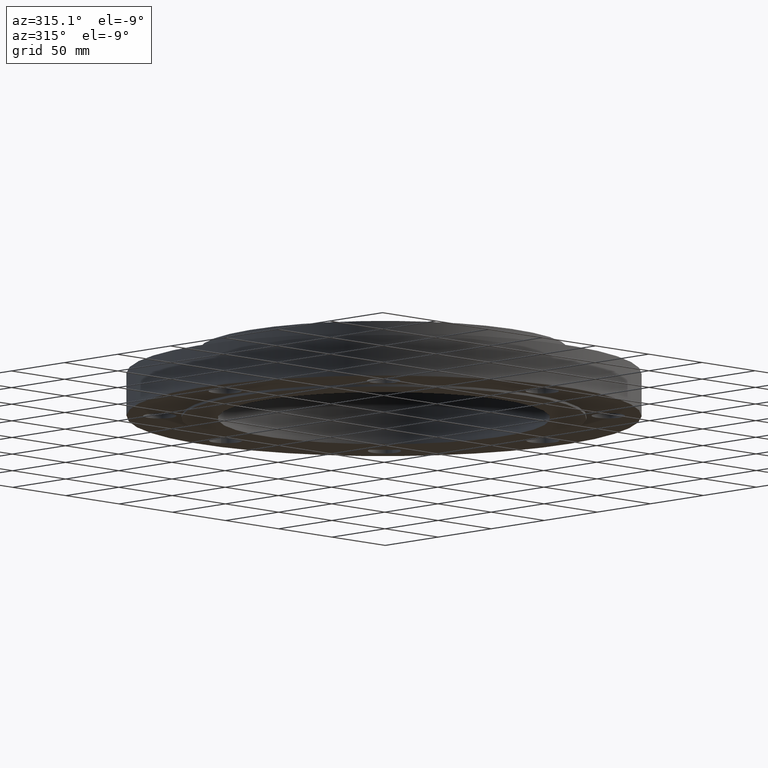
[diagram: clean part render]
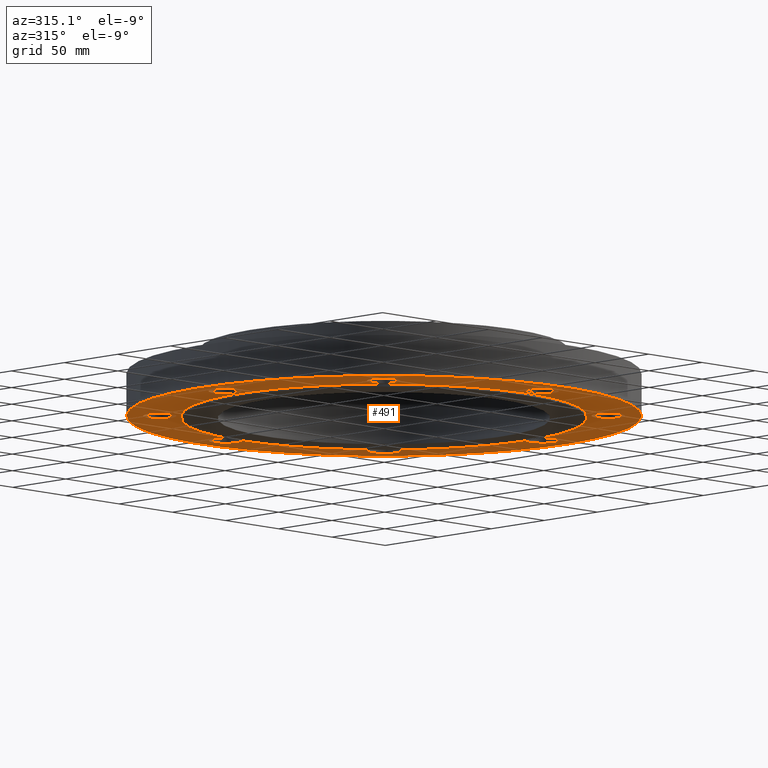
[diagram: same view with one face highlighted and labeled with its STEP entity id]
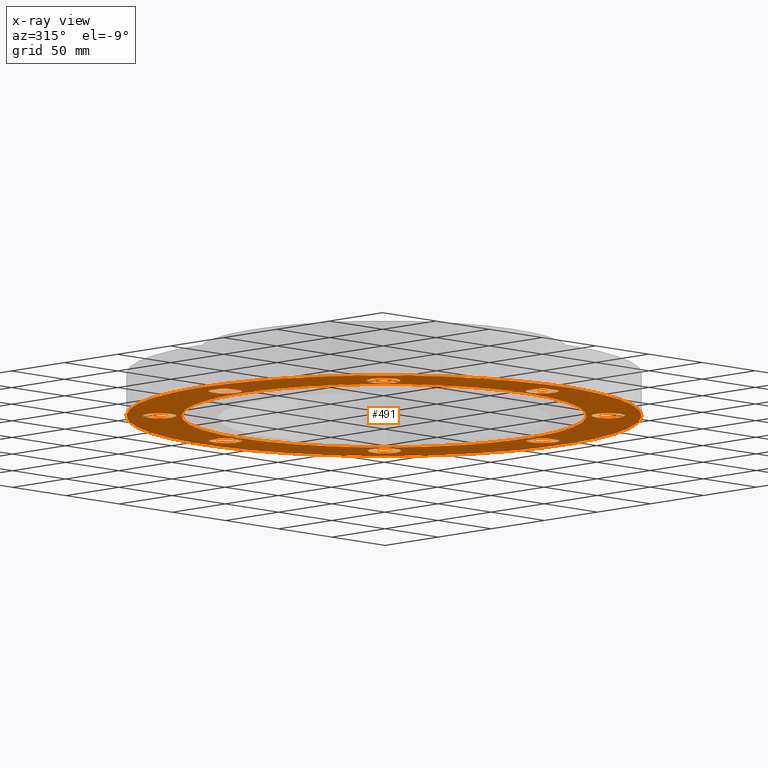
[diagram: x-ray of the same camera — body ghosted, the highlighted face saturated]
A machine part, auxiliary view. The second image highlights one B-rep face of the part: STEP entity #491.
The next image is the same camera in x-ray: the body ghosted, the highlighted face saturated — about 0% of this face is hidden behind the body in this view.
In plain terms, the highlighted planar face has unit normal (0, 0, 1).
Its self-contained STEP definition (entity closure, byte-faithful):
#51=AXIS2_PLACEMENT_3D('Circle Axis2P3D',#49,#50,$) ;
#77=AXIS2_PLACEMENT_3D('Circle Axis2P3D',#75,#76,$) ;
#122=AXIS2_PLACEMENT_3D('Circle Axis2P3D',#120,#121,$) ;
#139=AXIS2_PLACEMENT_3D('Circle Axis2P3D',#137,#138,$) ;
#165=AXIS2_PLACEMENT_3D('Circle Axis2P3D',#163,#164,$) ;
#191=AXIS2_PLACEMENT_3D('Circle Axis2P3D',#189,#190,$) ;
#351=AXIS2_PLACEMENT_3D('Plane Axis2P3D',#348,#349,#350) ;
#367=AXIS2_PLACEMENT_3D('Circle Axis2P3D',#365,#366,$) ;
#376=AXIS2_PLACEMENT_3D('Circle Axis2P3D',#374,#375,$) ;
#385=AXIS2_PLACEMENT_3D('Circle Axis2P3D',#383,#384,$) ;
#394=AXIS2_PLACEMENT_3D('Circle Axis2P3D',#392,#393,$) ;
#403=AXIS2_PLACEMENT_3D('Circle Axis2P3D',#401,#402,$) ;
#412=AXIS2_PLACEMENT_3D('Circle Axis2P3D',#410,#411,$) ;
#421=AXIS2_PLACEMENT_3D('Circle Axis2P3D',#419,#420,$) ;
#430=AXIS2_PLACEMENT_3D('Circle Axis2P3D',#428,#429,$) ;
#439=AXIS2_PLACEMENT_3D('Circle Axis2P3D',#437,#438,$) ;
#448=AXIS2_PLACEMENT_3D('Circle Axis2P3D',#446,#447,$) ;
#457=AXIS2_PLACEMENT_3D('Circle Axis2P3D',#455,#456,$) ;
#466=AXIS2_PLACEMENT_3D('Circle Axis2P3D',#464,#465,$) ;
#475=AXIS2_PLACEMENT_3D('Circle Axis2P3D',#473,#474,$) ;
#484=AXIS2_PLACEMENT_3D('Circle Axis2P3D',#482,#483,$) ;
#44=CARTESIAN_POINT('Vertex',(5.49105762919,0.20974867314,0.)) ;
#49=CARTESIAN_POINT('Axis2P3D Location',(5.87500000002,0.,0.)) ;
#53=CARTESIAN_POINT('Vertex',(6.25894237085,-0.20974867314,0.)) ;
#75=CARTESIAN_POINT('Axis2P3D Location',(5.87500000002,0.,0.)) ;
#101=CARTESIAN_POINT('Vertex',(-3.23612238559,5.92368229278,-3.59467486398E-014)) ;
#117=CARTESIAN_POINT('Vertex',(3.23612238559,-5.92368229278,-3.59467486398E-014)) ;
#120=CARTESIAN_POINT('Axis2P3D Location',(0.,0.,-3.60866192571E-014)) ;
#137=CARTESIAN_POINT('Axis2P3D Location',(0.,0.,-3.60866192571E-014)) ;
#160=CARTESIAN_POINT('Vertex',(2.54574961,-4.65996340366,-5.03534222192E-015)) ;
#163=CARTESIAN_POINT('Axis2P3D Location',(0.,0.,-5.03534222192E-015)) ;
#167=CARTESIAN_POINT('Vertex',(-2.54574961,4.65996340366,-5.03534222192E-015)) ;
#189=CARTESIAN_POINT('Axis2P3D Location',(0.,0.,-5.03534222192E-015)) ;
#348=CARTESIAN_POINT('Axis2P3D Location',(0.,6.75000000003,0.)) ;
#365=CARTESIAN_POINT('Axis2P3D Location',(4.15425233949,4.15425233949,0.)) ;
#369=CARTESIAN_POINT('Vertex',(3.73444937637,4.03107879461,0.)) ;
#371=CARTESIAN_POINT('Vertex',(4.57405530261,4.27742588436,0.)) ;
#374=CARTESIAN_POINT('Axis2P3D Location',(4.15425233949,4.15425233949,0.)) ;
#383=CARTESIAN_POINT('Axis2P3D Location',(-4.54579506146E-016,5.87500000002,0.)) ;
#387=CARTESIAN_POINT('Vertex',(-0.20974867314,5.49105762919,0.)) ;
#389=CARTESIAN_POINT('Vertex',(0.20974867314,6.25894237085,0.)) ;
#392=CARTESIAN_POINT('Axis2P3D Location',(-1.18890024684E-015,5.87500000002,0.)) ;
#401=CARTESIAN_POINT('Axis2P3D Location',(-4.15425233949,4.15425233949,0.)) ;
#405=CARTESIAN_POINT('Vertex',(-4.03107879461,3.73444937637,0.)) ;
#407=CARTESIAN_POINT('Vertex',(-4.27742588436,4.57405530261,0.)) ;
#410=CARTESIAN_POINT('Axis2P3D Location',(-4.15425233949,4.15425233949,0.)) ;
#419=CARTESIAN_POINT('Axis2P3D Location',(-5.87500000002,1.1189649382E-015,0.)) ;
#423=CARTESIAN_POINT('Vertex',(-5.49105762919,-0.20974867314,0.)) ;
#425=CARTESIAN_POINT('Vertex',(-6.25894237085,0.20974867314,0.)) ;
#428=CARTESIAN_POINT('Axis2P3D Location',(-5.87500000002,1.1189649382E-015,0.)) ;
#437=CARTESIAN_POINT('Axis2P3D Location',(-4.15425233949,-4.15425233949,0.)) ;
#441=CARTESIAN_POINT('Vertex',(-3.73444937637,-4.03107879461,0.)) ;
#443=CARTESIAN_POINT('Vertex',(-4.57405530261,-4.27742588436,0.)) ;
#446=CARTESIAN_POINT('Axis2P3D Location',(-4.15425233949,-4.15425233949,0.)) ;
#455=CARTESIAN_POINT('Axis2P3D Location',(-2.30786518505E-015,-5.87500000002,0.)) ;
#459=CARTESIAN_POINT('Vertex',(0.20974867314,-5.49105762919,0.)) ;
#461=CARTESIAN_POINT('Vertex',(-0.20974867314,-6.25894237085,0.)) ;
#464=CARTESIAN_POINT('Axis2P3D Location',(-1.81831802458E-015,-5.87500000002,0.)) ;
#473=CARTESIAN_POINT('Axis2P3D Location',(4.15425233949,-4.15425233949,0.)) ;
#477=CARTESIAN_POINT('Vertex',(4.03107879461,-3.73444937637,0.)) ;
#479=CARTESIAN_POINT('Vertex',(4.27742588436,-4.57405530261,0.)) ;
#482=CARTESIAN_POINT('Axis2P3D Location',(4.15425233949,-4.15425233949,0.)) ;
#50=DIRECTION('Axis2P3D Direction',(0.,-0.,-0.0393700787402)) ;
#76=DIRECTION('Axis2P3D Direction',(0.,-0.,-0.0393700787402)) ;
#121=DIRECTION('Axis2P3D Direction',(0.,0.,0.0393700787402)) ;
#138=DIRECTION('Axis2P3D Direction',(0.,0.,0.0393700787402)) ;
#164=DIRECTION('Axis2P3D Direction',(0.,0.,0.0393700787402)) ;
#190=DIRECTION('Axis2P3D Direction',(0.,0.,0.0393700787402)) ;
#349=DIRECTION('Axis2P3D Direction',(0.,0.,0.0393700787402)) ;
#350=DIRECTION('Axis2P3D XDirection',(0.0393700787402,0.,0.)) ;
#366=DIRECTION('Axis2P3D Direction',(0.,0.,0.0393700787402)) ;
#375=DIRECTION('Axis2P3D Direction',(0.,0.,0.0393700787402)) ;
#384=DIRECTION('Axis2P3D Direction',(0.,0.,0.0393700787402)) ;
#393=DIRECTION('Axis2P3D Direction',(0.,0.,0.0393700787402)) ;
#402=DIRECTION('Axis2P3D Direction',(0.,0.,0.0393700787402)) ;
#411=DIRECTION('Axis2P3D Direction',(0.,0.,0.0393700787402)) ;
#420=DIRECTION('Axis2P3D Direction',(0.,0.,0.0393700787402)) ;
#429=DIRECTION('Axis2P3D Direction',(0.,0.,0.0393700787402)) ;
#438=DIRECTION('Axis2P3D Direction',(0.,0.,0.0393700787402)) ;
#447=DIRECTION('Axis2P3D Direction',(0.,0.,0.0393700787402)) ;
#456=DIRECTION('Axis2P3D Direction',(0.,0.,0.0393700787402)) ;
#465=DIRECTION('Axis2P3D Direction',(0.,0.,0.0393700787402)) ;
#474=DIRECTION('Axis2P3D Direction',(0.,0.,0.0393700787402)) ;
#483=DIRECTION('Axis2P3D Direction',(0.,0.,0.0393700787402)) ;
#354=ORIENTED_EDGE('',*,*,#141,.F.) ;
#355=ORIENTED_EDGE('',*,*,#124,.F.) ;
#358=ORIENTED_EDGE('',*,*,#55,.T.) ;
#359=ORIENTED_EDGE('',*,*,#79,.T.) ;
#362=ORIENTED_EDGE('',*,*,#193,.T.) ;
#363=ORIENTED_EDGE('',*,*,#169,.T.) ;
#380=ORIENTED_EDGE('',*,*,#373,.T.) ;
#381=ORIENTED_EDGE('',*,*,#378,.T.) ;
#398=ORIENTED_EDGE('',*,*,#391,.T.) ;
#399=ORIENTED_EDGE('',*,*,#396,.T.) ;
#416=ORIENTED_EDGE('',*,*,#409,.T.) ;
#417=ORIENTED_EDGE('',*,*,#414,.T.) ;
#434=ORIENTED_EDGE('',*,*,#427,.T.) ;
#435=ORIENTED_EDGE('',*,*,#432,.T.) ;
#452=ORIENTED_EDGE('',*,*,#445,.T.) ;
#453=ORIENTED_EDGE('',*,*,#450,.T.) ;
#470=ORIENTED_EDGE('',*,*,#463,.T.) ;
#471=ORIENTED_EDGE('',*,*,#468,.T.) ;
#488=ORIENTED_EDGE('',*,*,#481,.T.) ;
#489=ORIENTED_EDGE('',*,*,#486,.T.) ;
#360=FACE_BOUND('',#357,.T.) ;
#364=FACE_BOUND('',#361,.T.) ;
#382=FACE_BOUND('',#379,.T.) ;
#400=FACE_BOUND('',#397,.T.) ;
#418=FACE_BOUND('',#415,.T.) ;
#436=FACE_BOUND('',#433,.T.) ;
#454=FACE_BOUND('',#451,.T.) ;
#472=FACE_BOUND('',#469,.T.) ;
#490=FACE_BOUND('',#487,.T.) ;
#491=ADVANCED_FACE('PartBody',(#356,#360,#364,#382,#400,#418,#436,#454,#472,#490),#352,.F.) ;
#52=CIRCLE('generated circle',#51,0.437500000002) ;
#78=CIRCLE('generated circle',#77,0.437500000002) ;
#123=CIRCLE('generated circle',#122,6.75000000003) ;
#140=CIRCLE('generated circle',#139,6.75000000003) ;
#166=CIRCLE('generated circle',#165,5.31000000002) ;
#192=CIRCLE('generated circle',#191,5.31000000002) ;
#368=CIRCLE('generated circle',#367,0.437500000002) ;
#377=CIRCLE('generated circle',#376,0.437500000002) ;
#386=CIRCLE('generated circle',#385,0.437500000002) ;
#395=CIRCLE('generated circle',#394,0.437500000002) ;
#404=CIRCLE('generated circle',#403,0.437500000002) ;
#413=CIRCLE('generated circle',#412,0.437500000002) ;
#422=CIRCLE('generated circle',#421,0.437500000002) ;
#431=CIRCLE('generated circle',#430,0.437500000002) ;
#440=CIRCLE('generated circle',#439,0.437500000002) ;
#449=CIRCLE('generated circle',#448,0.437500000002) ;
#458=CIRCLE('generated circle',#457,0.437500000002) ;
#467=CIRCLE('generated circle',#466,0.437500000002) ;
#476=CIRCLE('generated circle',#475,0.437500000002) ;
#485=CIRCLE('generated circle',#484,0.437500000002) ;
#55=EDGE_CURVE('',#54,#45,#52,.F.) ;
#79=EDGE_CURVE('',#45,#54,#78,.F.) ;
#124=EDGE_CURVE('',#118,#102,#123,.T.) ;
#141=EDGE_CURVE('',#102,#118,#140,.T.) ;
#169=EDGE_CURVE('',#168,#161,#166,.T.) ;
#193=EDGE_CURVE('',#161,#168,#192,.T.) ;
#373=EDGE_CURVE('',#370,#372,#368,.T.) ;
#378=EDGE_CURVE('',#372,#370,#377,.T.) ;
#391=EDGE_CURVE('',#388,#390,#386,.T.) ;
#396=EDGE_CURVE('',#390,#388,#395,.T.) ;
#409=EDGE_CURVE('',#406,#408,#404,.T.) ;
#414=EDGE_CURVE('',#408,#406,#413,.T.) ;
#427=EDGE_CURVE('',#424,#426,#422,.T.) ;
#432=EDGE_CURVE('',#426,#424,#431,.T.) ;
#445=EDGE_CURVE('',#442,#444,#440,.T.) ;
#450=EDGE_CURVE('',#444,#442,#449,.T.) ;
#463=EDGE_CURVE('',#460,#462,#458,.T.) ;
#468=EDGE_CURVE('',#462,#460,#467,.T.) ;
#481=EDGE_CURVE('',#478,#480,#476,.T.) ;
#486=EDGE_CURVE('',#480,#478,#485,.T.) ;
#353=EDGE_LOOP('',(#354,#355)) ;
#357=EDGE_LOOP('',(#358,#359)) ;
#361=EDGE_LOOP('',(#362,#363)) ;
#379=EDGE_LOOP('',(#380,#381)) ;
#397=EDGE_LOOP('',(#398,#399)) ;
#415=EDGE_LOOP('',(#416,#417)) ;
#433=EDGE_LOOP('',(#434,#435)) ;
#451=EDGE_LOOP('',(#452,#453)) ;
#469=EDGE_LOOP('',(#470,#471)) ;
#487=EDGE_LOOP('',(#488,#489)) ;
#356=FACE_OUTER_BOUND('',#353,.T.) ;
#352=PLANE('',#351) ;
#45=VERTEX_POINT('',#44) ;
#54=VERTEX_POINT('',#53) ;
#102=VERTEX_POINT('',#101) ;
#118=VERTEX_POINT('',#117) ;
#161=VERTEX_POINT('',#160) ;
#168=VERTEX_POINT('',#167) ;
#370=VERTEX_POINT('',#369) ;
#372=VERTEX_POINT('',#371) ;
#388=VERTEX_POINT('',#387) ;
#390=VERTEX_POINT('',#389) ;
#406=VERTEX_POINT('',#405) ;
#408=VERTEX_POINT('',#407) ;
#424=VERTEX_POINT('',#423) ;
#426=VERTEX_POINT('',#425) ;
#442=VERTEX_POINT('',#441) ;
#444=VERTEX_POINT('',#443) ;
#460=VERTEX_POINT('',#459) ;
#462=VERTEX_POINT('',#461) ;
#478=VERTEX_POINT('',#477) ;
#480=VERTEX_POINT('',#479) ;